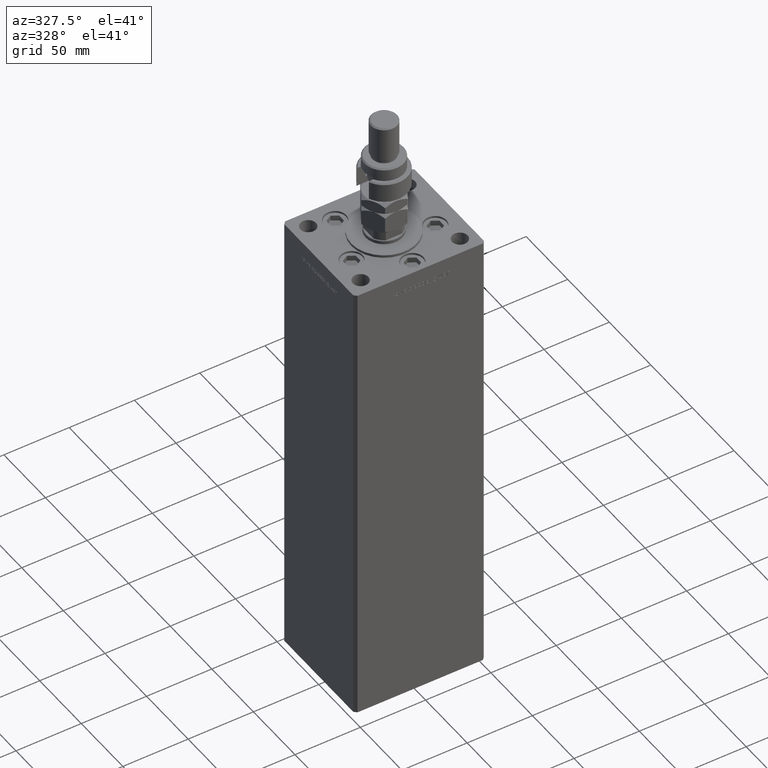
[diagram: clean part render]
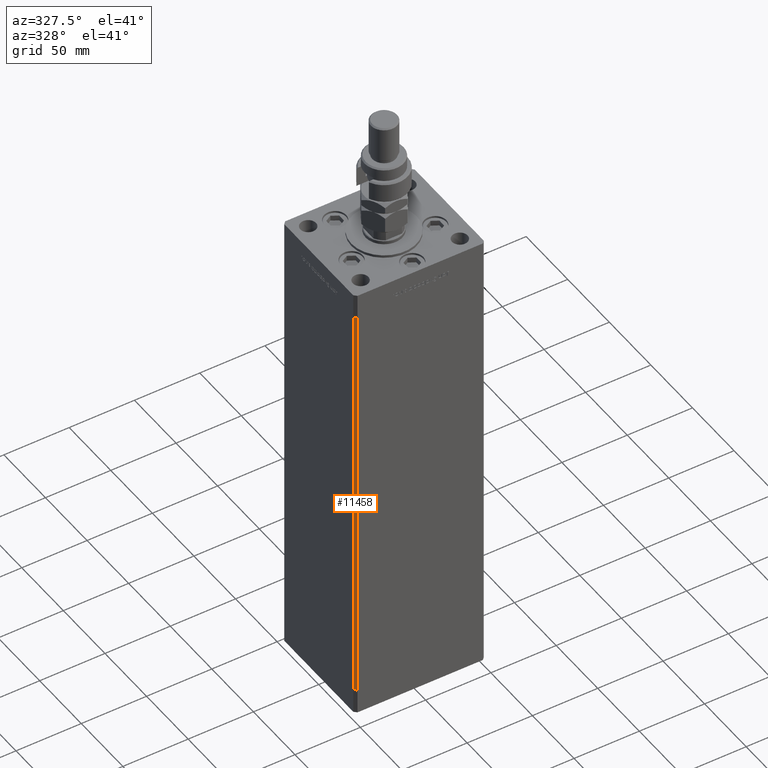
[diagram: same view with one face highlighted and labeled with its STEP entity id]
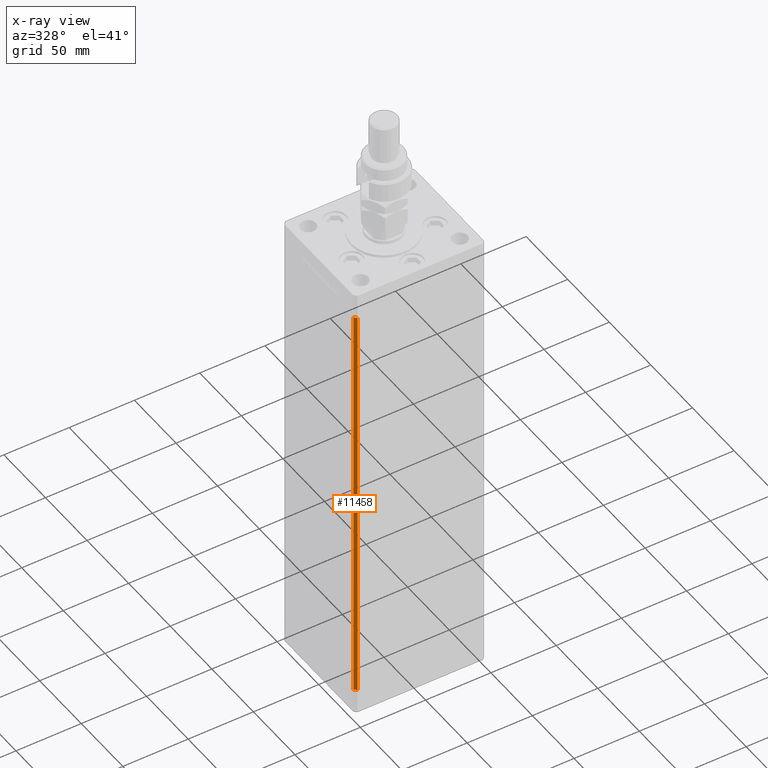
[diagram: x-ray of the same camera — body ghosted, the highlighted face saturated]
A machine part, auxiliary view. The second image highlights one B-rep face of the part: STEP entity #11458.
The next image is the same camera in x-ray: the body ghosted, the highlighted face saturated — about 0% of this face is hidden behind the body in this view.
In plain terms, the highlighted planar face has unit normal (0.7071, 0.7071, 0).
Its self-contained STEP definition (entity closure, byte-faithful):
#197 = LINE ( 'NONE', #46685, #6547 ) ;
#2298 = PLANE ( 'NONE',  #50924 ) ;
#2829 = DIRECTION ( 'NONE',  ( 0.7071067811865475727, 0.7071067811865475727, -0.000000000000000000 ) ) ;
#6547 = VECTOR ( 'NONE', #25234, 1000.000000000000000 ) ;
#6571 = VECTOR ( 'NONE', #23614, 1000.000000000000114 ) ;
#7099 = ORIENTED_EDGE ( 'NONE', *, *, #14197, .F. ) ;
#7378 = ORIENTED_EDGE ( 'NONE', *, *, #49752, .F. ) ;
#7851 = FACE_OUTER_BOUND ( 'NONE', #26068, .T. ) ;
#10443 = DIRECTION ( 'NONE',  ( -0.000000000000000000, -0.000000000000000000, -1.000000000000000000 ) ) ;
#11185 = DIRECTION ( 'NONE',  ( -0.7071067811865474617, 0.7071067811865474617, 0.000000000000000000 ) ) ;
#11458 = ADVANCED_FACE ( 'NONE', ( #7851 ), #2298, .F. ) ;
#11808 = LINE ( 'NONE', #28766, #21867 ) ;
#12090 = DIRECTION ( 'NONE',  ( 0.7071067811865474617, -0.7071067811865474617, 0.000000000000000000 ) ) ;
#14197 = EDGE_CURVE ( 'NONE', #35704, #46795, #197, .T. ) ;
#20375 = EDGE_CURVE ( 'NONE', #21725, #54900, #46380, .T. ) ;
#21725 = VERTEX_POINT ( 'NONE', #53607 ) ;
#21867 = VECTOR ( 'NONE', #12090, 1000.000000000000114 ) ;
#23614 = DIRECTION ( 'NONE',  ( 0.7071067811865474617, -0.7071067811865474617, 0.000000000000000000 ) ) ;
#25096 = CARTESIAN_POINT ( 'NONE',  ( -49.99999999999998579, -41.49999999999999289, 0.000000000000000000 ) ) ;
#25234 = DIRECTION ( 'NONE',  ( -0.000000000000000000, -0.000000000000000000, -1.000000000000000000 ) ) ;
#26068 = EDGE_LOOP ( 'NONE', ( #32555, #7099, #7378, #30309 ) ) ;
#28406 = CARTESIAN_POINT ( 'NONE',  ( -49.99999999999998579, -41.49999999999999289, 318.5000000000000000 ) ) ;
#28766 = CARTESIAN_POINT ( 'NONE',  ( -49.99999999999998579, -41.49999999999999289, 318.5000000000000000 ) ) ;
#30309 = ORIENTED_EDGE ( 'NONE', *, *, #20375, .T. ) ;
#32555 = ORIENTED_EDGE ( 'NONE', *, *, #43283, .T. ) ;
#32787 = CARTESIAN_POINT ( 'NONE',  ( -47.99999999999998579, -43.50000000000000000, 0.000000000000000000 ) ) ;
#35704 = VERTEX_POINT ( 'NONE', #45748 ) ;
#43283 = EDGE_CURVE ( 'NONE', #54900, #46795, #44789, .T. ) ;
#44789 = LINE ( 'NONE', #49242, #6571 ) ;
#45748 = CARTESIAN_POINT ( 'NONE',  ( -47.99999999999998579, -43.50000000000000000, 318.5000000000000000 ) ) ;
#45886 = VECTOR ( 'NONE', #10443, 1000.000000000000000 ) ;
#46380 = LINE ( 'NONE', #52203, #45886 ) ;
#46685 = CARTESIAN_POINT ( 'NONE',  ( -47.99999999999998579, -43.50000000000000000, 318.5000000000000000 ) ) ;
#46795 = VERTEX_POINT ( 'NONE', #32787 ) ;
#49242 = CARTESIAN_POINT ( 'NONE',  ( -49.99999999999998579, -41.49999999999999289, 0.000000000000000000 ) ) ;
#49752 = EDGE_CURVE ( 'NONE', #21725, #35704, #11808, .T. ) ;
#50924 = AXIS2_PLACEMENT_3D ( 'NONE', #28406, #2829, #11185 ) ;
#52203 = CARTESIAN_POINT ( 'NONE',  ( -49.99999999999998579, -41.49999999999999289, 318.5000000000000000 ) ) ;
#53607 = CARTESIAN_POINT ( 'NONE',  ( -49.99999999999998579, -41.49999999999999289, 318.5000000000000000 ) ) ;
#54900 = VERTEX_POINT ( 'NONE', #25096 ) ;